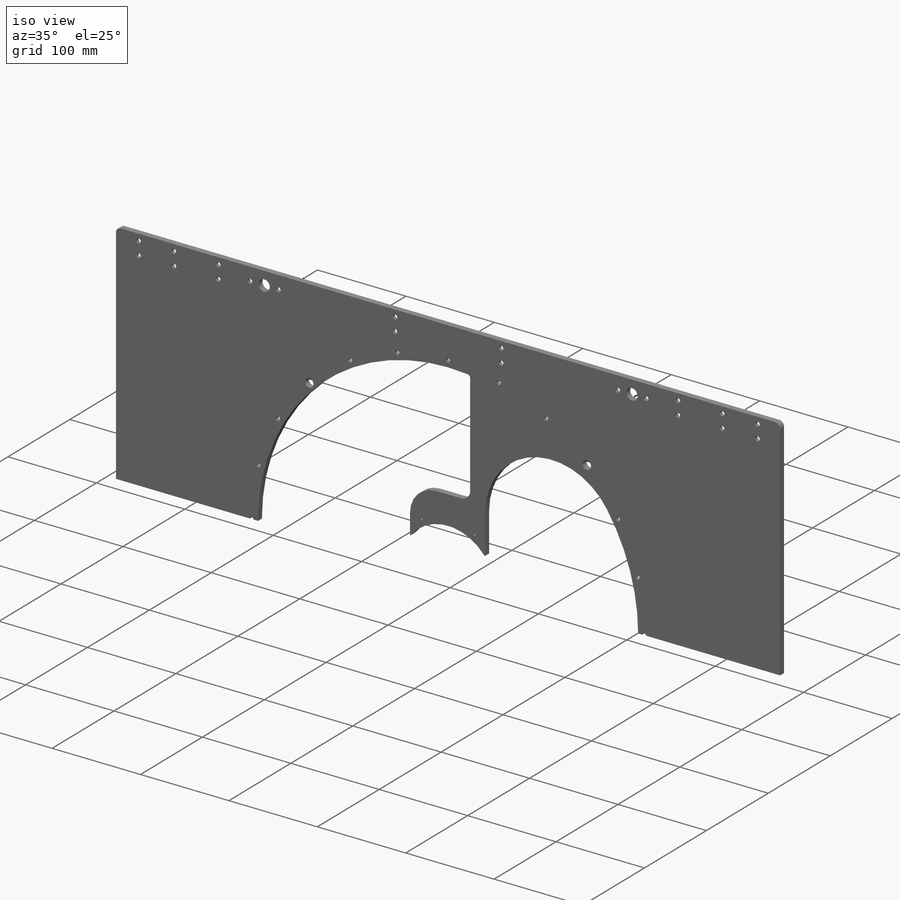
[diagram: iso view]
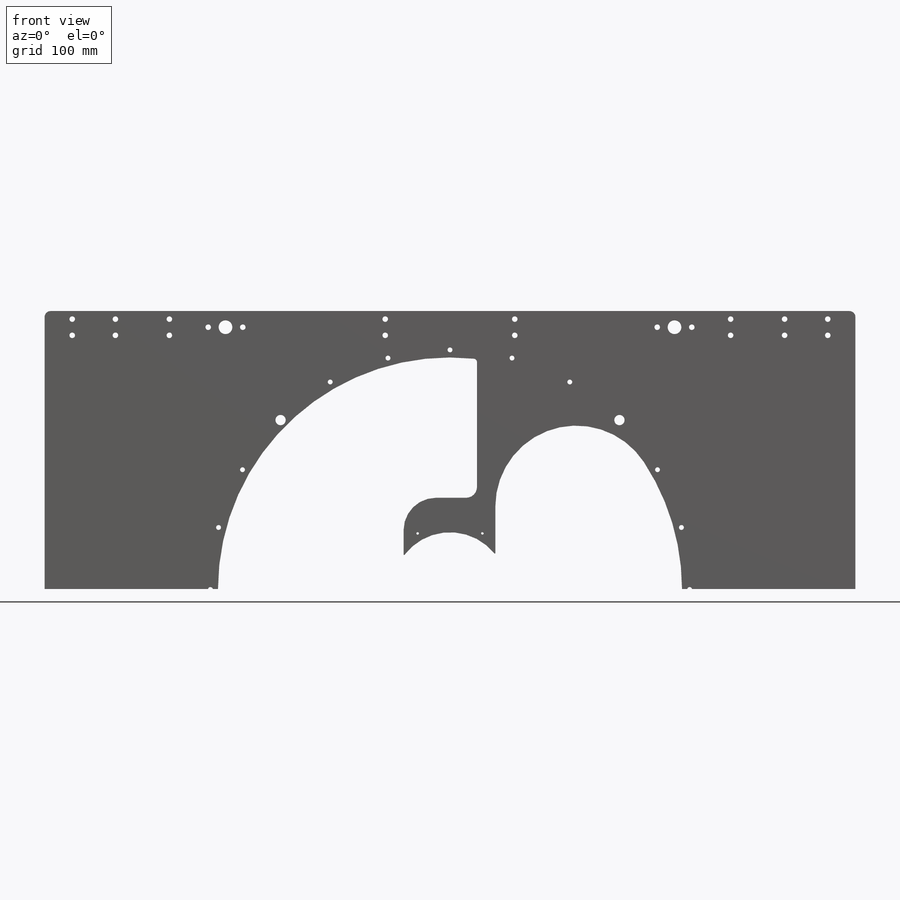
[diagram: front view]
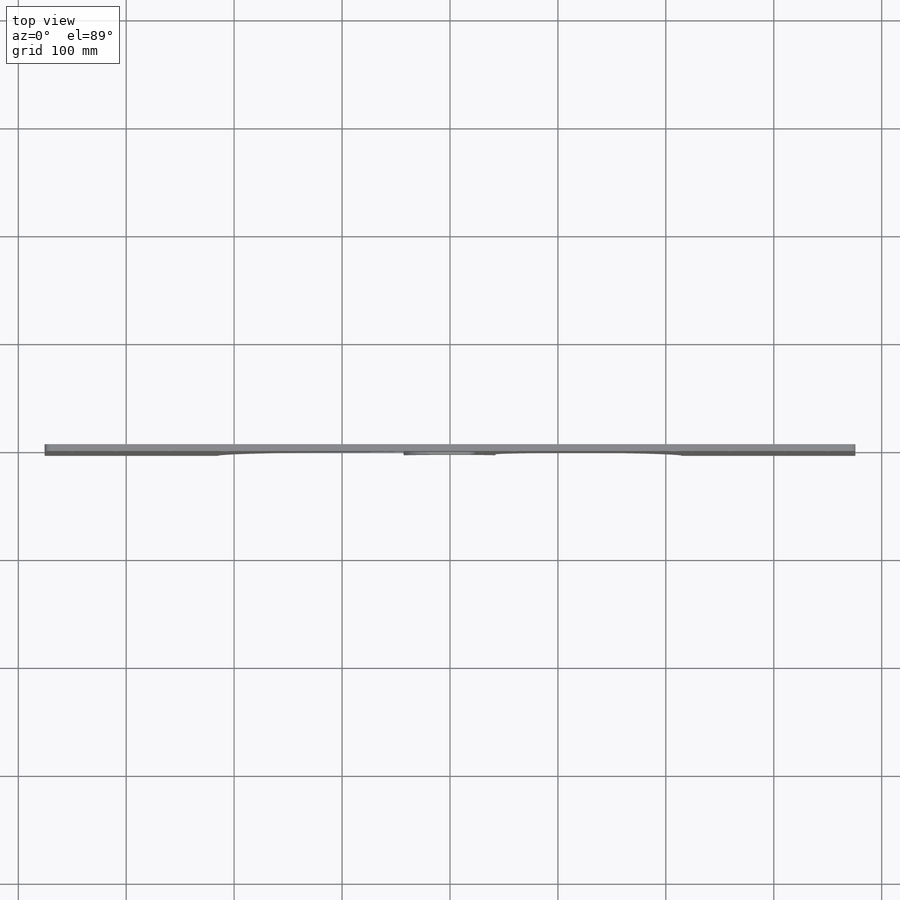
[diagram: top view]
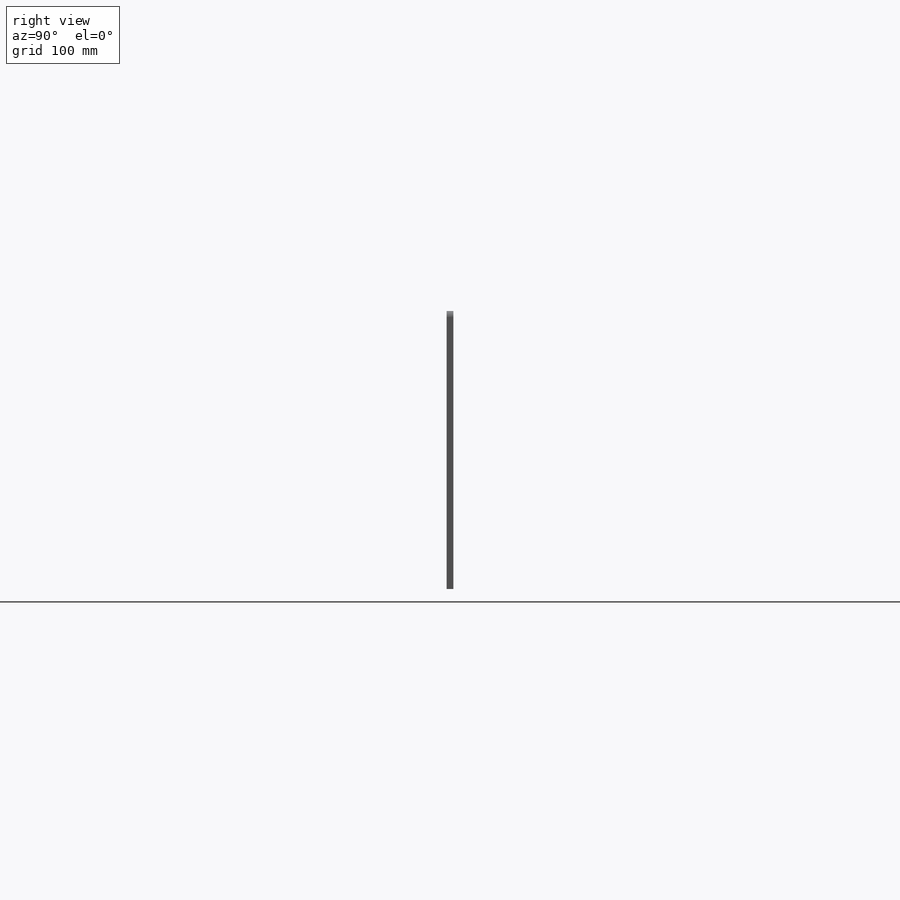
[diagram: right view]
SOLIDWORKS PART (.sldprt)
format: sldprt  version: not decoded by parser v0  size: 617,984 bytes
history: native  units: mm
features: sketch x17, fillet x7, hole x6, cut_extrude x3, thread x2, material x1, extrude x1, pattern_circular x1 (+11 scaffold rows collapsed)
feature tree (49):
  scaffold x11  (default folders/planes/origin — collapsed)
  material  "6061-T6 (SS)"
  sketch  "Sketch1"  dims[c1.D1=85.0mm c1.D2=429.95mm c1.D3=444.0mm c1.D4=454.65mm c1.D7=100.2mm c1.D5=516.0mm c1.D6=25.0mm c2.D7=~179.319847mm c2.D8=17.0mm c2.D9=17.0mm c2.D10=63.0mm c2.D11=85.0mm c2.D12=68.0mm c2.D13=751.2004mm]
  extrude  "Boss-Extrude2"  Depth=6.35mm
  fillet  "Fillet1"  Radius=25mm
  fillet  "Fillet4"  Radius=75mm
  sketch  "Sketch2"
  cut_extrude  "Cut-Extrude1"  Depth=10mm
  fillet  "Fillet6"  Radius=10mm
  fillet  "Fillet7"  Radius=30mm
  sketch  "Sketch3"  dims[c1.D1=12.0mm c1.D2=38.0mm c1.D3=350.0mm c1.D4=60.0mm c2.D1=7.5mm c2.D2=22.5mm c2.D5=285.0mm c2.D6=25.0mm c2.D7=208.0mm c2.D8=32.0mm c2.D9=15.0mm]
  hole  "CSK for #10 Flat Head Machine Screw1"  Diameter=5.1054mm Depth=6.35mm
  sketch  "Sketch5"
  sketch  "Sketch4"  dims[hole-wizard template sketch: 55 standard entries collapsed; hole parameters kept: c17.Thru Hole Depth=6.35mm c17.Near C'Sink Dia.=9.779mm c17.D4=~3.666174mm c17.Near C'Sink Angle=82.0deg]
  hole  "1/2 (0.5) Diameter Hole1"  Diameter=12.7mm Depth=129.53mm
  sketch  "Sketch9"
  sketch  "Sketch8"  dims[hole-wizard template sketch: 47 standard entries collapsed; hole parameters kept: c15.Hole Depth=129.53mm c15.D3=~14.816244mm c15.Drill Angle=118.0deg]
  hole  "CSK for M4 Flat Head Machine Screw1"  Diameter=4.5mm Depth=6.35mm
  sketch  "Sketch11"  dims[D1=222.0mm]
  sketch  "Sketch10"  dims[hole-wizard template sketch: 55 standard entries collapsed; hole parameters kept: c17.Thru Hole Depth=6.35mm c17.Near C'Sink Dia.=9.4mm c17.D4=~3.666174mm c17.Near C'Sink Angle=90.0deg]
  pattern_circular  "CirPattern1"  Count=24 Angle=360deg
  hole  "M4 Clearance Hole1"  Diameter=4.5mm Depth=6.35mm
  sketch  "Sketch15"  dims[D1=222.0mm]
  sketch  "Sketch14"  dims[hole-wizard template sketch: 60 standard entries collapsed; hole parameters kept: c18.Thru Hole Depth=6.35mm]
  sketch  "Sketch12"  dims[D1=1.0mm]
  cut_extrude  "Cut-Extrude2"  [1 undecoded]
  fillet  "Fillet8"  Radius=3.175mm
  fillet  "Fillet9"  Radius=5.5mm
  hole  "3/8 (0.375) Diameter Hole1 to clear  4 mm cap screw"  Diameter=9.525mm Depth=6.35mm
  sketch  "Sketch17"
  sketch  "Sketch16"  dims[hole-wizard template sketch: 61 standard entries collapsed; hole parameters above]
  sketch  "Sketch18"  dims[D1=106.0mm]
  cut_extrude  "Cut-Extrude3"  [1 undecoded]
  hole  "#4-40 Tapped Hole1"  Diameter=2.2606mm Depth=9.53mm
  sketch  "Sketch20"  dims[D1=60.0mm D2=60.0mm]
  sketch  "Sketch19"  dims[hole-wizard template sketch: 47 standard entries collapsed; hole parameters kept: c15.Tap Drill Depth=9.53mm c15.D3=~14.816244mm c15.Drill Angle=118.0deg]
  thread  "Hole Thread1"  Diameter=5.69mm  [1 undecoded]
  thread  "Hole Thread2"  Diameter=5.69mm  [1 undecoded]
  fillet  "Fillet10"  Radius=0.5mm
decode coverage: 31 of 37 modeling features carry decoded parameters
note: ~ marks probable driven/reference dimensions
note: 4 parameter values undecoded
summary: Diameter pulled from absorbed wizard sketch
note: suppression state not decoded; provenance and decode notes live in map.json
